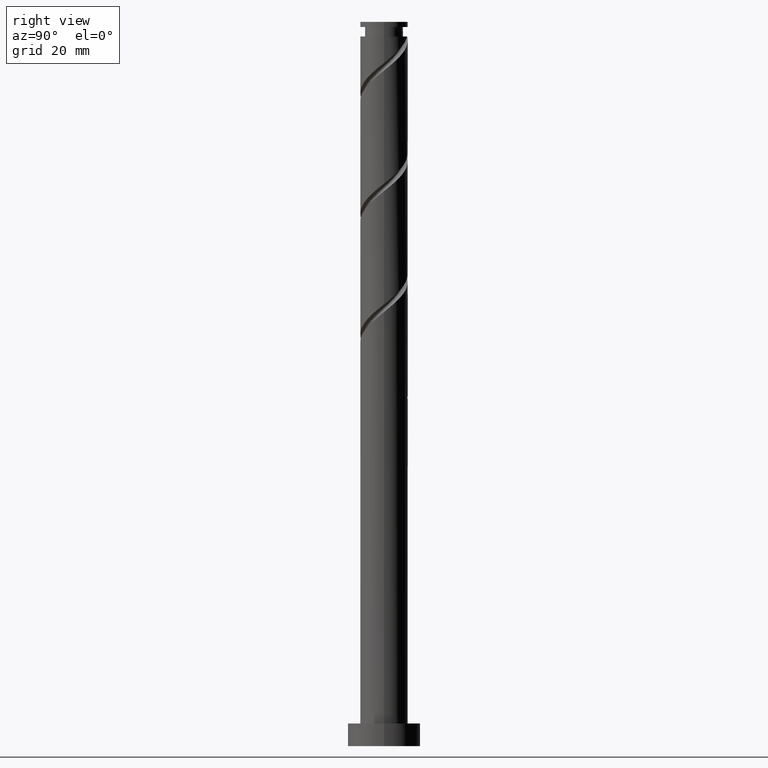
[diagram: clean part render]
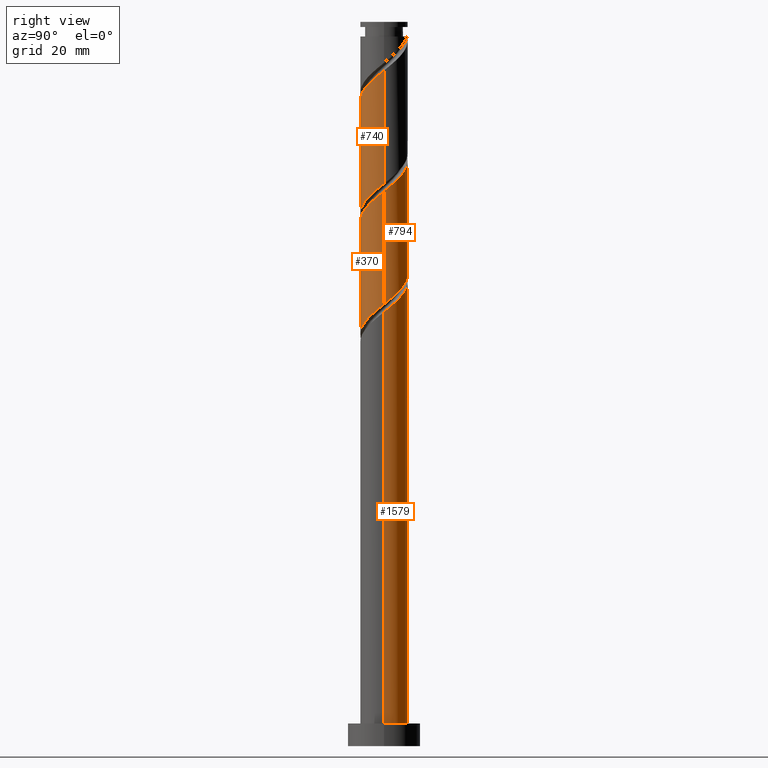
[diagram: same view with one multi-face feature highlighted, each face labeled with its STEP entity id]
A machine part, right view. The highlighted faces form ONE feature: a constant-radius fillet chain: 4 tangent blend faces with common blend radius 5.25 mm. The faces share edges in the B-rep.
Their STEP definitions:
[1] entity #740 (Cylinder):
#68 = CARTESIAN_POINT ( 'NONE',  ( -5.197907200538203654, -1.055480074241133437, 136.7693566931735063 ) ) ;
#78 = CARTESIAN_POINT ( 'NONE',  ( -1.784476131566090196, -4.994789523933699904, 116.1632960871128830 ) ) ;
#108 = CARTESIAN_POINT ( 'NONE',  ( 2.451931632424582563, -4.642254976831389435, 144.6481445719613532 ) ) ;
#112 = CARTESIAN_POINT ( 'NONE',  ( 5.114055971177482895, -1.186984213738335292, 148.2845082083249508 ) ) ;
#119 = EDGE_CURVE ( 'NONE', #233, #1574, #663, .T. ) ;
#126 = VECTOR ( 'NONE', #1514, 1000.000000000000000 ) ;
#131 = CARTESIAN_POINT ( 'NONE',  ( 5.250000000000007105, -0.6012768687718996752, 148.7672755942345759 ) ) ;
#140 = CARTESIAN_POINT ( 'NONE',  ( 5.250000000000007994, 3.664421072356622063E-15, 149.2532355472059180 ) ) ;
#153 = EDGE_CURVE ( 'NONE', #667, #1574, #1622, .T. ) ;
#174 = ORIENTED_EDGE ( 'NONE', *, *, #1280, .F. ) ;
#199 = CARTESIAN_POINT ( 'NONE',  ( -5.250000000000007994, 3.425111941100679676E-15, 135.9199022138725752 ) ) ;
#233 = VERTEX_POINT ( 'NONE', #862 ) ;
#237 = CARTESIAN_POINT ( 'NONE',  ( 4.201583941171067593, -3.237123698257508675, 146.4663263901431094 ) ) ;
#252 = CARTESIAN_POINT ( 'NONE',  ( 1.044736808961952201, -5.145000000000006679, 143.4360233598401635 ) ) ;
#272 = CARTESIAN_POINT ( 'NONE',  ( 4.572488673549144345, -2.579699077463275980, 147.0723869962037327 ) ) ;
#294 = CARTESIAN_POINT ( 'NONE',  ( -0.3049974863578157058, -5.295210476066303684, 117.3754172992340727 ) ) ;
#322 = ORIENTED_EDGE ( 'NONE', *, *, #119, .F. ) ;
#391 = CARTESIAN_POINT ( 'NONE',  ( 5.250000000000000000, -6.446389723206998310E-15, 124.2854778391410093 ) ) ;
#394 = CARTESIAN_POINT ( 'NONE',  ( -3.802122185635577356, -3.698127139245582118, 139.1935991174158573 ) ) ;
#424 = CARTESIAN_POINT ( 'NONE',  ( 0.000000000000000000, 0.000000000000000000, 160.0000000000000000 ) ) ;
#484 = CARTESIAN_POINT ( 'NONE',  ( -5.114055971177476678, -1.186984213738331961, 111.9208718446886479 ) ) ;
#497 = CARTESIAN_POINT ( 'NONE',  ( 5.250000000000000000, 6.429395695523604153E-16, 160.0000000000000000 ) ) ;
#506 = CARTESIAN_POINT ( 'NONE',  ( 1.784476131566091084, -4.994789523933706121, 144.0420839659007584 ) ) ;
#511 = CARTESIAN_POINT ( 'NONE',  ( 4.943949768471830986, -1.766312737548856537, 122.8299627537795544 ) ) ;
#519 = CARTESIAN_POINT ( 'NONE',  ( 3.802122185635572471, -3.698127139245577233, 121.0117809355977130 ) ) ;
#560 = CARTESIAN_POINT ( 'NONE',  ( 1.902708474391032745, -4.893076788839569424, 119.1935991174159000 ) ) ;
#561 = AXIS2_PLACEMENT_3D ( 'NONE', #424, #1165, #1195 ) ;
#575 = CARTESIAN_POINT ( 'NONE',  ( -1.044736808961952645, -5.144999999999999574, 116.7693566931734637 ) ) ;
#582 = CARTESIAN_POINT ( 'NONE',  ( -4.943949768471838091, -1.766312737548857426, 137.3754172992340727 ) ) ;
#599 = CARTESIAN_POINT ( 'NONE',  ( -5.250000000000000000, 5.429325915369235968E-15, 110.9521445058076665 ) ) ;
#608 = CARTESIAN_POINT ( 'NONE',  ( -5.250000000000001776, -0.6012768687718920146, 111.4381044587789944 ) ) ;
#633 = CARTESIAN_POINT ( 'NONE',  ( -4.689992336405471640, -2.477145400856581858, 137.9814779052946676 ) ) ;
#663 =( BOUNDED_CURVE ( )  B_SPLINE_CURVE ( 2, ( #391, #1634, #1371, #1643, #511, #1145, #873, #519, #769, #1166, #560, #1420, #925, #294, #575, #78, #725, #1488, #964, #1233, #1587, #1097, #484, #608, #599 ),
 .UNSPECIFIED., .F., .T. ) 
 B_SPLINE_CURVE_WITH_KNOTS ( ( 3, 2, 2, 2, 2, 2, 2, 2, 2, 2, 2, 2, 3 ),
 ( 0.5545252162417513286, 0.5568181818181817677, 0.5681818181818182323, 0.5795454545454545858, 0.5909090909090909394, 0.6022727272727272929, 0.6136363636363636465, 0.6250000000000000000, 0.6363636363636363535, 0.6477272727272727071, 0.6590909090909090606, 0.6704545454545454142, 0.6795252162417513286 ),
 .UNSPECIFIED. ) 
 CURVE ( )  GEOMETRIC_REPRESENTATION_ITEM ( )  RATIONAL_B_SPLINE_CURVE ( ( 0.9061101570135543515, 0.9072237824201364598, 0.9090909090909138346, 0.8998376744372161840, 0.9090909090909138346, 0.8998376744372161840, 0.9090909090909138346, 0.8998376744372161840, 0.9090909090909138346, 0.8998376744372161840, 0.9090909090909138346, 0.8998376744372161840, 0.9090909090909138346, 0.8998376744372161840, 0.9090909090909138346, 0.8998376744372161840, 0.9090909090909138346, 0.8998376744372161840, 0.9090909090909138346, 0.8998376744372161840, 0.9090909090909138346, 0.8998376744372161840, 0.9090909090909138346, 0.9017048011079935588, 0.9061101570135543515 ) ) 
 REPRESENTATION_ITEM ( '' )  );
#667 = VERTEX_POINT ( 'NONE', #801 ) ;
#690 = VECTOR ( 'NONE', #818, 1000.000000000000000 ) ;
#703 = CARTESIAN_POINT ( 'NONE',  ( -5.250000000000007994, -0.1510715142500640706, 136.0420002185908004 ) ) ;
#725 = CARTESIAN_POINT ( 'NONE',  ( -2.451931632424580343, -4.642254976831381441, 115.5572354810522455 ) ) ;
#740 = ADVANCED_FACE ( 'NONE', ( #1445 ), #790, .T. ) ;
#763 = CARTESIAN_POINT ( 'NONE',  ( -0.4470963774737324314, -5.230927721661803531, 142.2239021477189169 ) ) ;
#769 = CARTESIAN_POINT ( 'NONE',  ( 3.204174446556178779, -4.158817874833713901, 120.4057203295371181 ) ) ;
#790 = CYLINDRICAL_SURFACE ( 'NONE', #561, 5.250000000000000000 ) ;
#801 = CARTESIAN_POINT ( 'NONE',  ( -5.250000000000007994, 3.425111941100679676E-15, 135.9199022138725752 ) ) ;
#818 = DIRECTION ( 'NONE',  ( -0.000000000000000000, -0.000000000000000000, -1.000000000000000000 ) ) ;
#862 = CARTESIAN_POINT ( 'NONE',  ( 5.250000000000000000, -6.446389723206998310E-15, 124.2854778391410093 ) ) ;
#873 = CARTESIAN_POINT ( 'NONE',  ( 4.246057261020518503, -3.087636270051078213, 121.6178415416583221 ) ) ;
#878 = CARTESIAN_POINT ( 'NONE',  ( -1.902708474391036964, -4.893076788839576530, 141.0117809355976988 ) ) ;
#900 = CARTESIAN_POINT ( 'NONE',  ( 0.3049974863578137629, -5.295210476066309013, 142.8299627537794549 ) ) ;
#925 = CARTESIAN_POINT ( 'NONE',  ( 0.4470963774737297669, -5.230927721661797314, 117.9814779052946960 ) ) ;
#964 = CARTESIAN_POINT ( 'NONE',  ( -3.660485537227067265, -3.763422063993283384, 114.3451142689310416 ) ) ;
#1007 = CARTESIAN_POINT ( 'NONE',  ( 3.119387133283074487, -4.289720429729070972, 145.2542051780219481 ) ) ;
#1015 = CARTESIAN_POINT ( 'NONE',  ( 3.660485537227071706, -3.763422063993290934, 145.8602657840825430 ) ) ;
#1053 = EDGE_LOOP ( 'NONE', ( #174, #1227, #1523, #322 ) ) ;
#1097 = CARTESIAN_POINT ( 'NONE',  ( -4.943393405927213990, -1.922274456669037068, 112.5269324507492286 ) ) ;
#1136 = CARTESIAN_POINT ( 'NONE',  ( -2.606226707476793969, -4.619508610421854122, 140.4057203295371039 ) ) ;
#1145 = CARTESIAN_POINT ( 'NONE',  ( 4.689992336405464535, -2.477145400856580970, 122.2239021477189027 ) ) ;
#1148 = CARTESIAN_POINT ( 'NONE',  ( -3.204174446556184996, -4.158817874833717454, 139.7996597234764806 ) ) ;
#1159 = EDGE_CURVE ( 'NONE', #667, #1202, #1242, .T. ) ;
#1165 = DIRECTION ( 'NONE',  ( -0.000000000000000000, -0.000000000000000000, -1.000000000000000000 ) ) ;
#1166 = CARTESIAN_POINT ( 'NONE',  ( 2.606226707476788640, -4.619508610421848793, 119.7996597234765233 ) ) ;
#1195 = DIRECTION ( 'NONE',  ( -1.000000000000000000, 0.000000000000000000, 0.000000000000000000 ) ) ;
#1202 = VERTEX_POINT ( 'NONE', #140 ) ;
#1204 = CARTESIAN_POINT ( 'NONE',  ( -5.241312868482974174, -0.3018930517167516814, 136.1632960871128830 ) ) ;
#1221 = CARTESIAN_POINT ( 'NONE',  ( -5.250000000000000000, 5.429325915369235179E-15, 110.9521445058076807 ) ) ;
#1227 = ORIENTED_EDGE ( 'NONE', *, *, #1159, .F. ) ;
#1233 = CARTESIAN_POINT ( 'NONE',  ( -4.201583941171064041, -3.237123698257502902, 113.7390536628704467 ) ) ;
#1242 =( BOUNDED_CURVE ( )  B_SPLINE_CURVE ( 2, ( #199, #703, #1204, #68, #582, #633, #1533, #394, #1148, #1136, #878, #1650, #763, #900, #252, #506, #108, #1007, #1015, #237, #272, #1406, #112, #131, #1376 ),
 .UNSPECIFIED., .F., .T. ) 
 B_SPLINE_CURVE_WITH_KNOTS ( ( 3, 2, 2, 2, 2, 2, 2, 2, 2, 2, 2, 2, 3 ),
 ( 0.5545252162417513286, 0.5568181818181818787, 0.5681818181818181213, 0.5795454545454545858, 0.5909090909090908283, 0.6022727272727272929, 0.6136363636363636465, 0.6250000000000000000, 0.6363636363636363535, 0.6477272727272727071, 0.6590909090909091717, 0.6704545454545454142, 0.6795252162417513286 ),
 .UNSPECIFIED. ) 
 CURVE ( )  GEOMETRIC_REPRESENTATION_ITEM ( )  RATIONAL_B_SPLINE_CURVE ( ( 0.9061101570135601246, 0.9072237824201423440, 0.9090909090909198298, 0.8998376744372221792, 0.9090909090909198298, 0.8998376744372221792, 0.9090909090909198298, 0.8998376744372221792, 0.9090909090909198298, 0.8998376744372221792, 0.9090909090909198298, 0.8998376744372221792, 0.9090909090909198298, 0.8998376744372221792, 0.9090909090909198298, 0.8998376744372221792, 0.9090909090909198298, 0.8998376744372221792, 0.9090909090909198298, 0.8998376744372221792, 0.9090909090909198298, 0.8998376744372221792, 0.9090909090909198298, 0.9017048011079996650, 0.9061101570135601246 ) ) 
 REPRESENTATION_ITEM ( '' )  );
#1278 = LINE ( 'NONE', #497, #126 ) ;
#1280 = EDGE_CURVE ( 'NONE', #1202, #233, #1278, .T. ) ;
#1371 = CARTESIAN_POINT ( 'NONE',  ( 5.241312868482967957, -0.3018930517167535688, 124.0420839659007299 ) ) ;
#1376 = CARTESIAN_POINT ( 'NONE',  ( 5.250000000000007994, 3.664421072356622063E-15, 149.2532355472059180 ) ) ;
#1406 = CARTESIAN_POINT ( 'NONE',  ( 4.943393405927220208, -1.922274456669039289, 147.6784476022643560 ) ) ;
#1420 = CARTESIAN_POINT ( 'NONE',  ( 1.199190241305277516, -5.166644967257291832, 118.5875385113552767 ) ) ;
#1445 = FACE_OUTER_BOUND ( 'NONE', #1053, .T. ) ;
#1454 = CARTESIAN_POINT ( 'NONE',  ( -5.250000000000000000, 0.000000000000000000, 160.0000000000000000 ) ) ;
#1488 = CARTESIAN_POINT ( 'NONE',  ( -3.119387133283070934, -4.289720429729066531, 114.9511748749916649 ) ) ;
#1514 = DIRECTION ( 'NONE',  ( -0.000000000000000000, -0.000000000000000000, -1.000000000000000000 ) ) ;
#1523 = ORIENTED_EDGE ( 'NONE', *, *, #153, .T. ) ;
#1533 = CARTESIAN_POINT ( 'NONE',  ( -4.246057261020524720, -3.087636270051081766, 138.5875385113552340 ) ) ;
#1574 = VERTEX_POINT ( 'NONE', #1221 ) ;
#1587 = CARTESIAN_POINT ( 'NONE',  ( -4.572488673549138127, -2.579699077463270207, 113.1329930568098234 ) ) ;
#1622 = LINE ( 'NONE', #1454, #690 ) ;
#1634 = CARTESIAN_POINT ( 'NONE',  ( 5.250000000000000000, -0.1510715142500720920, 124.1633798344227841 ) ) ;
#1643 = CARTESIAN_POINT ( 'NONE',  ( 5.197907200538196548, -1.055480074241133881, 123.4360233598401493 ) ) ;
#1650 = CARTESIAN_POINT ( 'NONE',  ( -1.199190241305278848, -5.166644967257297161, 141.6178415416582652 ) ) ;
[2] entity #794 (Cylinder):
#43 = CARTESIAN_POINT ( 'NONE',  ( 0.000000000000000000, 0.000000000000000000, 160.0000000000000000 ) ) ;
#77 = CARTESIAN_POINT ( 'NONE',  ( 4.246057261020525608, 3.087636270051080878, 125.2542051780219339 ) ) ;
#86 = CARTESIAN_POINT ( 'NONE',  ( -3.660485537227071706, 3.763422063993290934, 132.5269324507492286 ) ) ;
#94 = CARTESIAN_POINT ( 'NONE',  ( -4.246057261020516727, 3.087636270051077325, 108.2845082083249650 ) ) ;
#97 =( BOUNDED_CURVE ( )  B_SPLINE_CURVE ( 2, ( #1058, #589, #462, #1471, #343, #1478, #77, #715, #1095, #1223, #1333, #204, #607, #853, #1110, #336, #709, #1596, #86, #1232, #1621, #353, #483, #1603, #1212 ),
 .UNSPECIFIED., .F., .T. ) 
 B_SPLINE_CURVE_WITH_KNOTS ( ( 3, 2, 2, 2, 2, 2, 2, 2, 2, 2, 2, 2, 3 ),
 ( 0.4295252162417513286, 0.4318181818181817677, 0.4431818181818182323, 0.4545454545454545858, 0.4659090909090909394, 0.4772727272727272929, 0.4886363636363636465, 0.5000000000000000000, 0.5113636363636363535, 0.5227272727272727071, 0.5340909090909091717, 0.5454545454545454142, 0.5545252162417513286 ),
 .UNSPECIFIED. ) 
 CURVE ( )  GEOMETRIC_REPRESENTATION_ITEM ( )  RATIONAL_B_SPLINE_CURVE ( ( 0.9061101570135603467, 0.9072237824201424550, 0.9090909090909198298, 0.8998376744372221792, 0.9090909090909198298, 0.8998376744372221792, 0.9090909090909198298, 0.8998376744372221792, 0.9090909090909198298, 0.8998376744372221792, 0.9090909090909198298, 0.8998376744372221792, 0.9090909090909198298, 0.8998376744372221792, 0.9090909090909198298, 0.8998376744372221792, 0.9090909090909198298, 0.8998376744372221792, 0.9090909090909198298, 0.8998376744372221792, 0.9090909090909198298, 0.8998376744372221792, 0.9090909090909198298, 0.9017048011079996650, 0.9061101570135601246 ) ) 
 REPRESENTATION_ITEM ( '' )  );
#102 = VECTOR ( 'NONE', #1152, 1000.000000000000000 ) ;
#115 = CARTESIAN_POINT ( 'NONE',  ( 2.451931632424580787, 4.642254976831381441, 102.2239021477189596 ) ) ;
#153 = EDGE_CURVE ( 'NONE', #667, #1574, #1622, .T. ) ;
#204 = CARTESIAN_POINT ( 'NONE',  ( 1.199190241305279514, 5.166644967257297161, 128.2845082083249793 ) ) ;
#226 = EDGE_CURVE ( 'NONE', #1574, #572, #908, .T. ) ;
#265 = CARTESIAN_POINT ( 'NONE',  ( -3.204174446556179667, 4.158817874833713013, 107.0723869962037611 ) ) ;
#301 = EDGE_CURVE ( 'NONE', #951, #572, #810, .T. ) ;
#336 = CARTESIAN_POINT ( 'NONE',  ( -1.784476131566091750, 4.994789523933705233, 130.7087506325673871 ) ) ;
#343 = CARTESIAN_POINT ( 'NONE',  ( 4.943949768471838091, 1.766312737548856537, 124.0420839659007299 ) ) ;
#353 = CARTESIAN_POINT ( 'NONE',  ( -4.943393405927220208, 1.922274456669040621, 134.3451142689310416 ) ) ;
#355 = CARTESIAN_POINT ( 'NONE',  ( 5.250000000000000000, -6.446389723206998310E-15, 97.61881117247435213 ) ) ;
#389 = CARTESIAN_POINT ( 'NONE',  ( -1.902708474391032745, 4.893076788839569424, 105.8602657840825714 ) ) ;
#462 = CARTESIAN_POINT ( 'NONE',  ( 5.241312868482974174, 0.3018930517167511818, 122.8299627537795260 ) ) ;
#483 = CARTESIAN_POINT ( 'NONE',  ( -5.114055971177482895, 1.186984213738335514, 134.9511748749916364 ) ) ;
#485 = CARTESIAN_POINT ( 'NONE',  ( 4.572488673549138127, 2.579699077463271539, 99.79965972347645220 ) ) ;
#491 = CARTESIAN_POINT ( 'NONE',  ( 1.784476131566091306, 4.994789523933699904, 102.8299627537795260 ) ) ;
#518 = CARTESIAN_POINT ( 'NONE',  ( -5.241312868482967957, 0.3018930517167528471, 110.7087506325674013 ) ) ;
#572 = VERTEX_POINT ( 'NONE', #1284 ) ;
#589 = CARTESIAN_POINT ( 'NONE',  ( 5.250000000000007105, 0.1510715142500695385, 122.7086668852574434 ) ) ;
#607 = CARTESIAN_POINT ( 'NONE',  ( 0.4470963774737330421, 5.230927721661803531, 128.8905688143856025 ) ) ;
#609 = CARTESIAN_POINT ( 'NONE',  ( 3.660485537227065045, 3.763422063993285160, 101.0117809355977130 ) ) ;
#610 = ORIENTED_EDGE ( 'NONE', *, *, #301, .T. ) ;
#647 = CARTESIAN_POINT ( 'NONE',  ( 5.250000000000000000, 6.429395695523604153E-16, 160.0000000000000000 ) ) ;
#659 = CYLINDRICAL_SURFACE ( 'NONE', #820, 5.250000000000000000 ) ;
#665 = EDGE_LOOP ( 'NONE', ( #954, #610, #799, #821 ) ) ;
#667 = VERTEX_POINT ( 'NONE', #801 ) ;
#687 = DIRECTION ( 'NONE',  ( -0.000000000000000000, -0.000000000000000000, -1.000000000000000000 ) ) ;
#690 = VECTOR ( 'NONE', #818, 1000.000000000000000 ) ;
#696 = CARTESIAN_POINT ( 'NONE',  ( 5.250000000000007994, 3.664421072356622063E-15, 122.5865688805392324 ) ) ;
#709 = CARTESIAN_POINT ( 'NONE',  ( -2.451931632424583007, 4.642254976831389435, 131.3148112386279820 ) ) ;
#715 = CARTESIAN_POINT ( 'NONE',  ( 3.802122185635579577, 3.698127139245580342, 125.8602657840825145 ) ) ;
#794 = ADVANCED_FACE ( 'NONE', ( #817 ), #659, .T. ) ;
#799 = ORIENTED_EDGE ( 'NONE', *, *, #226, .F. ) ;
#801 = CARTESIAN_POINT ( 'NONE',  ( -5.250000000000007994, 3.425111941100679676E-15, 135.9199022138725752 ) ) ;
#810 = LINE ( 'NONE', #647, #102 ) ;
#817 = FACE_OUTER_BOUND ( 'NONE', #665, .T. ) ;
#818 = DIRECTION ( 'NONE',  ( -0.000000000000000000, -0.000000000000000000, -1.000000000000000000 ) ) ;
#820 = AXIS2_PLACEMENT_3D ( 'NONE', #43, #687, #920 ) ;
#821 = ORIENTED_EDGE ( 'NONE', *, *, #153, .F. ) ;
#853 = CARTESIAN_POINT ( 'NONE',  ( -0.3049974863578130968, 5.295210476066309013, 129.4966294204461690 ) ) ;
#880 = CARTESIAN_POINT ( 'NONE',  ( -0.4470963774737310437, 5.230927721661797314, 104.6481445719613390 ) ) ;
#894 = CARTESIAN_POINT ( 'NONE',  ( -3.802122185635571583, 3.698127139245577677, 107.6784476022643702 ) ) ;
#908 =( BOUNDED_CURVE ( )  B_SPLINE_CURVE ( 2, ( #1256, #1120, #518, #1663, #1023, #1632, #94, #894, #265, #1527, #389, #1138, #880, #1499, #1234, #491, #115, #1653, #609, #1112, #485, #1000, #1378, #990, #355 ),
 .UNSPECIFIED., .F., .T. ) 
 B_SPLINE_CURVE_WITH_KNOTS ( ( 3, 2, 2, 2, 2, 2, 2, 2, 2, 2, 2, 2, 3 ),
 ( 0.6795252162417513286, 0.6818181818181817677, 0.6931818181818182323, 0.7045454545454545858, 0.7159090909090909394, 0.7272727272727272929, 0.7386363636363636465, 0.7500000000000000000, 0.7613636363636363535, 0.7727272727272727071, 0.7840909090909090606, 0.7954545454545454142, 0.8045252162417513286 ),
 .UNSPECIFIED. ) 
 CURVE ( )  GEOMETRIC_REPRESENTATION_ITEM ( )  RATIONAL_B_SPLINE_CURVE ( ( 0.9061101570135543515, 0.9072237824201364598, 0.9090909090909138346, 0.8998376744372161840, 0.9090909090909138346, 0.8998376744372161840, 0.9090909090909138346, 0.8998376744372161840, 0.9090909090909138346, 0.8998376744372161840, 0.9090909090909138346, 0.8998376744372161840, 0.9090909090909138346, 0.8998376744372161840, 0.9090909090909138346, 0.8998376744372161840, 0.9090909090909138346, 0.8998376744372161840, 0.9090909090909138346, 0.8998376744372161840, 0.9090909090909138346, 0.8998376744372161840, 0.9090909090909138346, 0.9017048011079935588, 0.9061101570135543515 ) ) 
 REPRESENTATION_ITEM ( '' )  );
#920 = DIRECTION ( 'NONE',  ( -1.000000000000000000, 0.000000000000000000, 0.000000000000000000 ) ) ;
#951 = VERTEX_POINT ( 'NONE', #696 ) ;
#954 = ORIENTED_EDGE ( 'NONE', *, *, #1037, .F. ) ;
#990 = CARTESIAN_POINT ( 'NONE',  ( 5.250000000000001776, 0.6012768687718903493, 98.10477112544568001 ) ) ;
#1000 = CARTESIAN_POINT ( 'NONE',  ( 4.943393405927214879, 1.922274456669034404, 99.19359911741589997 ) ) ;
#1023 = CARTESIAN_POINT ( 'NONE',  ( -4.943949768471830986, 1.766312737548856093, 109.4966294204461974 ) ) ;
#1037 = EDGE_CURVE ( 'NONE', #951, #667, #97, .T. ) ;
#1058 = CARTESIAN_POINT ( 'NONE',  ( 5.250000000000007994, 3.664421072356622063E-15, 122.5865688805392182 ) ) ;
#1095 = CARTESIAN_POINT ( 'NONE',  ( 3.204174446556184108, 4.158817874833719230, 126.4663263901431804 ) ) ;
#1110 = CARTESIAN_POINT ( 'NONE',  ( -1.044736808961951535, 5.145000000000006679, 130.1026900265067923 ) ) ;
#1112 = CARTESIAN_POINT ( 'NONE',  ( 4.201583941171061376, 3.237123698257504234, 100.4057203295370897 ) ) ;
#1120 = CARTESIAN_POINT ( 'NONE',  ( -5.250000000000000000, 0.1510715142500712316, 110.8300465010894413 ) ) ;
#1138 = CARTESIAN_POINT ( 'NONE',  ( -1.199190241305276627, 5.166644967257290944, 105.2542051780219339 ) ) ;
#1152 = DIRECTION ( 'NONE',  ( -0.000000000000000000, -0.000000000000000000, -1.000000000000000000 ) ) ;
#1212 = CARTESIAN_POINT ( 'NONE',  ( -5.250000000000007994, 3.425111941100679676E-15, 135.9199022138725752 ) ) ;
#1221 = CARTESIAN_POINT ( 'NONE',  ( -5.250000000000000000, 5.429325915369235179E-15, 110.9521445058076807 ) ) ;
#1223 = CARTESIAN_POINT ( 'NONE',  ( 2.606226707476792193, 4.619508610421854122, 127.0723869962037185 ) ) ;
#1232 = CARTESIAN_POINT ( 'NONE',  ( -4.201583941171067593, 3.237123698257508231, 133.1329930568097666 ) ) ;
#1234 = CARTESIAN_POINT ( 'NONE',  ( 1.044736808961953534, 5.144999999999999574, 103.4360233598401209 ) ) ;
#1256 = CARTESIAN_POINT ( 'NONE',  ( -5.250000000000000000, 5.429325915369235968E-15, 110.9521445058076665 ) ) ;
#1284 = CARTESIAN_POINT ( 'NONE',  ( 5.250000000000000000, -6.446389723206998310E-15, 97.61881117247435213 ) ) ;
#1333 = CARTESIAN_POINT ( 'NONE',  ( 1.902708474391034965, 4.893076788839577418, 127.6784476022643844 ) ) ;
#1378 = CARTESIAN_POINT ( 'NONE',  ( 5.114055971177477566, 1.186984213738330851, 98.58753851135529089 ) ) ;
#1454 = CARTESIAN_POINT ( 'NONE',  ( -5.250000000000000000, 0.000000000000000000, 160.0000000000000000 ) ) ;
#1471 = CARTESIAN_POINT ( 'NONE',  ( 5.197907200538203654, 1.055480074241132771, 123.4360233598401209 ) ) ;
#1478 = CARTESIAN_POINT ( 'NONE',  ( 4.689992336405474305, 2.477145400856580526, 124.6481445719613106 ) ) ;
#1499 = CARTESIAN_POINT ( 'NONE',  ( 0.3049974863578144291, 5.295210476066303684, 104.0420839659007441 ) ) ;
#1527 = CARTESIAN_POINT ( 'NONE',  ( -2.606226707476789528, 4.619508610421848793, 106.4663263901431662 ) ) ;
#1574 = VERTEX_POINT ( 'NONE', #1221 ) ;
#1596 = CARTESIAN_POINT ( 'NONE',  ( -3.119387133283074043, 4.289720429729071860, 131.9208718446886053 ) ) ;
#1603 = CARTESIAN_POINT ( 'NONE',  ( -5.250000000000007105, 0.6012768687719000082, 135.4339422609012900 ) ) ;
#1621 = CARTESIAN_POINT ( 'NONE',  ( -4.572488673549145233, 2.579699077463275536, 133.7390536628703899 ) ) ;
#1622 = LINE ( 'NONE', #1454, #690 ) ;
#1632 = CARTESIAN_POINT ( 'NONE',  ( -4.689992336405464535, 2.477145400856580970, 108.8905688143855883 ) ) ;
#1653 = CARTESIAN_POINT ( 'NONE',  ( 3.119387133283070934, 4.289720429729066531, 101.6178415416583221 ) ) ;
#1663 = CARTESIAN_POINT ( 'NONE',  ( -5.197907200538196548, 1.055480074241133215, 110.1026900265068349 ) ) ;
[3] entity #370 (Cylinder):
#4 = CARTESIAN_POINT ( 'NONE',  ( -5.250000000000007994, -3.873816562205571602E-15, 109.2532355472059038 ) ) ;
#93 = CARTESIAN_POINT ( 'NONE',  ( -1.044736808961952645, -5.144999999999999574, 90.10269002650682069 ) ) ;
#100 = CARTESIAN_POINT ( 'NONE',  ( 4.943949768471830986, -1.766312737548856537, 96.16329608711286880 ) ) ;
#102 = VECTOR ( 'NONE', #1152, 1000.000000000000000 ) ;
#114 = CARTESIAN_POINT ( 'NONE',  ( 1.902708474391032745, -4.893076788839569424, 92.52693245074922856 ) ) ;
#220 = CARTESIAN_POINT ( 'NONE',  ( 5.197907200538196548, -1.055480074241133881, 96.76935669317349209 ) ) ;
#229 = CARTESIAN_POINT ( 'NONE',  ( 5.241312868482967957, -0.3018930517167535688, 97.37541729923405853 ) ) ;
#254 = CARTESIAN_POINT ( 'NONE',  ( -2.451931632424580343, -4.642254976831381441, 88.89056881438557411 ) ) ;
#261 = CARTESIAN_POINT ( 'NONE',  ( -3.204174446556184996, -4.158817874833717454, 113.1329930568098234 ) ) ;
#284 = CARTESIAN_POINT ( 'NONE',  ( -5.250000000000000000, 5.429325915369235968E-15, 84.28547783914100933 ) ) ;
#301 = EDGE_CURVE ( 'NONE', #951, #572, #810, .T. ) ;
#304 = CARTESIAN_POINT ( 'NONE',  ( 4.572488673549144345, -2.579699077463275980, 120.4057203295371039 ) ) ;
#368 = CARTESIAN_POINT ( 'NONE',  ( -5.250000000000007105, -0.1510715142500735630, 109.3753335519241290 ) ) ;
#370 = ADVANCED_FACE ( 'NONE', ( #1598 ), #948, .T. ) ;
#371 = CARTESIAN_POINT ( 'NONE',  ( 4.246057261020518503, -3.087636270051078213, 94.95117487499162223 ) ) ;
#378 = CARTESIAN_POINT ( 'NONE',  ( 1.784476131566091084, -4.994789523933706121, 117.3754172992340585 ) ) ;
#387 = LINE ( 'NONE', #1142, #1296 ) ;
#397 = CARTESIAN_POINT ( 'NONE',  ( -5.250000000000001776, -0.6012768687718920146, 84.77143779211232300 ) ) ;
#413 = CARTESIAN_POINT ( 'NONE',  ( 3.660485537227071706, -3.763422063993290934, 119.1935991174159000 ) ) ;
#504 = EDGE_CURVE ( 'NONE', #572, #893, #777, .T. ) ;
#516 = CARTESIAN_POINT ( 'NONE',  ( 3.802122185635572471, -3.698127139245577233, 94.34511426893105579 ) ) ;
#523 = CARTESIAN_POINT ( 'NONE',  ( -4.689992336405471640, -2.477145400856581858, 111.3148112386279962 ) ) ;
#547 = VERTEX_POINT ( 'NONE', #1606 ) ;
#569 = ORIENTED_EDGE ( 'NONE', *, *, #1178, .T. ) ;
#572 = VERTEX_POINT ( 'NONE', #1284 ) ;
#627 = CARTESIAN_POINT ( 'NONE',  ( 1.044736808961952201, -5.145000000000006679, 116.7693566931734352 ) ) ;
#629 = CARTESIAN_POINT ( 'NONE',  ( 0.4470963774737297669, -5.230927721661797314, 91.31481123862801041 ) ) ;
#645 = CARTESIAN_POINT ( 'NONE',  ( -4.943393405927213990, -1.922274456669037068, 85.86026578408255716 ) ) ;
#647 = CARTESIAN_POINT ( 'NONE',  ( 5.250000000000000000, 6.429395695523604153E-16, 160.0000000000000000 ) ) ;
#660 = AXIS2_PLACEMENT_3D ( 'NONE', #1213, #833, #1472 ) ;
#696 = CARTESIAN_POINT ( 'NONE',  ( 5.250000000000007994, 3.664421072356622063E-15, 122.5865688805392324 ) ) ;
#724 = CARTESIAN_POINT ( 'NONE',  ( 3.204174446556178779, -4.158817874833713901, 93.73905366287041829 ) ) ;
#738 = DIRECTION ( 'NONE',  ( -0.000000000000000000, -0.000000000000000000, -1.000000000000000000 ) ) ;
#745 = CARTESIAN_POINT ( 'NONE',  ( -1.199190241305278848, -5.166644967257297161, 114.9511748749916649 ) ) ;
#756 = CARTESIAN_POINT ( 'NONE',  ( -3.660485537227067265, -3.763422063993283384, 87.67844760226437018 ) ) ;
#766 = CARTESIAN_POINT ( 'NONE',  ( -4.572488673549138127, -2.579699077463270207, 86.46632639014316624 ) ) ;
#777 =( BOUNDED_CURVE ( )  B_SPLINE_CURVE ( 2, ( #1255, #1008, #229, #220, #100, #1377, #371, #516, #724, #1387, #114, #998, #629, #1522, #93, #1652, #254, #1239, #756, #902, #766, #645, #1289, #397, #284 ),
 .UNSPECIFIED., .F., .T. ) 
 B_SPLINE_CURVE_WITH_KNOTS ( ( 3, 2, 2, 2, 2, 2, 2, 2, 2, 2, 2, 2, 3 ),
 ( 0.8045252162417513286, 0.8068181818181817677, 0.8181818181818182323, 0.8295454545454545858, 0.8409090909090909394, 0.8522727272727272929, 0.8636363636363636465, 0.8750000000000000000, 0.8863636363636363535, 0.8977272727272727071, 0.9090909090909090606, 0.9204545454545454142, 0.9295252162417513286 ),
 .UNSPECIFIED. ) 
 CURVE ( )  GEOMETRIC_REPRESENTATION_ITEM ( )  RATIONAL_B_SPLINE_CURVE ( ( 0.9061101570135543515, 0.9072237824201364598, 0.9090909090909138346, 0.8998376744372161840, 0.9090909090909138346, 0.8998376744372161840, 0.9090909090909138346, 0.8998376744372161840, 0.9090909090909138346, 0.8998376744372161840, 0.9090909090909138346, 0.8998376744372161840, 0.9090909090909138346, 0.8998376744372161840, 0.9090909090909138346, 0.8998376744372161840, 0.9090909090909138346, 0.8998376744372161840, 0.9090909090909138346, 0.8998376744372161840, 0.9090909090909138346, 0.8998376744372161840, 0.9090909090909138346, 0.9017048011079935588, 0.9061101570135543515 ) ) 
 REPRESENTATION_ITEM ( '' )  );
#783 = CARTESIAN_POINT ( 'NONE',  ( -5.250000000000000000, 5.429325915369235179E-15, 84.28547783914100933 ) ) ;
#810 = LINE ( 'NONE', #647, #102 ) ;
#833 = DIRECTION ( 'NONE',  ( -0.000000000000000000, -0.000000000000000000, -1.000000000000000000 ) ) ;
#838 = ORIENTED_EDGE ( 'NONE', *, *, #301, .F. ) ;
#871 = CARTESIAN_POINT ( 'NONE',  ( -4.246057261020524720, -3.087636270051081766, 111.9208718446886337 ) ) ;
#885 = CARTESIAN_POINT ( 'NONE',  ( 2.451931632424582563, -4.642254976831389435, 117.9814779052946534 ) ) ;
#891 = CARTESIAN_POINT ( 'NONE',  ( -3.802122185635577356, -3.698127139245582118, 112.5269324507491859 ) ) ;
#893 = VERTEX_POINT ( 'NONE', #783 ) ;
#902 = CARTESIAN_POINT ( 'NONE',  ( -4.201583941171064041, -3.237123698257502902, 87.07238699620376110 ) ) ;
#948 = CYLINDRICAL_SURFACE ( 'NONE', #660, 5.250000000000000000 ) ;
#951 = VERTEX_POINT ( 'NONE', #696 ) ;
#997 = CARTESIAN_POINT ( 'NONE',  ( -5.241312868482974174, -0.3018930517167516814, 109.4966294204461832 ) ) ;
#998 = CARTESIAN_POINT ( 'NONE',  ( 1.199190241305277516, -5.166644967257291832, 91.92087184468861949 ) ) ;
#1008 = CARTESIAN_POINT ( 'NONE',  ( 5.250000000000000000, -0.1510715142500720920, 97.49671316775611274 ) ) ;
#1026 = CARTESIAN_POINT ( 'NONE',  ( 0.3049974863578137629, -5.295210476066309013, 116.1632960871128404 ) ) ;
#1031 = CARTESIAN_POINT ( 'NONE',  ( 4.943393405927220208, -1.922274456669039289, 121.0117809355976704 ) ) ;
#1047 = CARTESIAN_POINT ( 'NONE',  ( 5.250000000000009770, -0.6012768687718939020, 122.1006089275679187 ) ) ;
#1126 = CARTESIAN_POINT ( 'NONE',  ( -2.606226707476793969, -4.619508610421854122, 113.7390536628704041 ) ) ;
#1142 = CARTESIAN_POINT ( 'NONE',  ( -5.250000000000000000, 0.000000000000000000, 160.0000000000000000 ) ) ;
#1152 = DIRECTION ( 'NONE',  ( -0.000000000000000000, -0.000000000000000000, -1.000000000000000000 ) ) ;
#1167 = EDGE_LOOP ( 'NONE', ( #838, #1304, #569, #1483 ) ) ;
#1169 = CARTESIAN_POINT ( 'NONE',  ( 4.201583941171067593, -3.237123698257508675, 119.7996597234764948 ) ) ;
#1178 = EDGE_CURVE ( 'NONE', #547, #893, #387, .T. ) ;
#1213 = CARTESIAN_POINT ( 'NONE',  ( 0.000000000000000000, 0.000000000000000000, 160.0000000000000000 ) ) ;
#1239 = CARTESIAN_POINT ( 'NONE',  ( -3.119387133283070934, -4.289720429729066531, 88.28450820832499346 ) ) ;
#1255 = CARTESIAN_POINT ( 'NONE',  ( 5.250000000000000000, -6.446389723206998310E-15, 97.61881117247435213 ) ) ;
#1270 = CARTESIAN_POINT ( 'NONE',  ( -0.4470963774737324314, -5.230927721661803531, 115.5572354810522597 ) ) ;
#1284 = CARTESIAN_POINT ( 'NONE',  ( 5.250000000000000000, -6.446389723206998310E-15, 97.61881117247435213 ) ) ;
#1289 = CARTESIAN_POINT ( 'NONE',  ( -5.114055971177476678, -1.186984213738331961, 85.25420517802196230 ) ) ;
#1296 = VECTOR ( 'NONE', #738, 1000.000000000000000 ) ;
#1298 = CARTESIAN_POINT ( 'NONE',  ( 5.114055971177482895, -1.186984213738335292, 121.6178415416583221 ) ) ;
#1304 = ORIENTED_EDGE ( 'NONE', *, *, #1329, .F. ) ;
#1329 = EDGE_CURVE ( 'NONE', #547, #951, #1343, .T. ) ;
#1343 =( BOUNDED_CURVE ( )  B_SPLINE_CURVE ( 2, ( #4, #368, #997, #1630, #1505, #523, #871, #891, #261, #1126, #1367, #745, #1270, #1026, #627, #378, #885, #1385, #413, #1169, #304, #1031, #1298, #1047, #1543 ),
 .UNSPECIFIED., .F., .T. ) 
 B_SPLINE_CURVE_WITH_KNOTS ( ( 3, 2, 2, 2, 2, 2, 2, 2, 2, 2, 2, 2, 3 ),
 ( 0.3045252162417513841, 0.3068181818181817677, 0.3181818181818182323, 0.3295454545454545858, 0.3409090909090909394, 0.3522727272727272929, 0.3636363636363636465, 0.3750000000000000000, 0.3863636363636363535, 0.3977272727272727071, 0.4090909090909090606, 0.4204545454545454142, 0.4295252162417513286 ),
 .UNSPECIFIED. ) 
 CURVE ( )  GEOMETRIC_REPRESENTATION_ITEM ( )  RATIONAL_B_SPLINE_CURVE ( ( 0.9061101570135603467, 0.9072237824201424550, 0.9090909090909198298, 0.8998376744372221792, 0.9090909090909198298, 0.8998376744372221792, 0.9090909090909198298, 0.8998376744372221792, 0.9090909090909198298, 0.8998376744372221792, 0.9090909090909198298, 0.8998376744372221792, 0.9090909090909198298, 0.8998376744372221792, 0.9090909090909198298, 0.8998376744372221792, 0.9090909090909198298, 0.8998376744372221792, 0.9090909090909198298, 0.8998376744372221792, 0.9090909090909198298, 0.8998376744372221792, 0.9090909090909198298, 0.9017048011079995540, 0.9061101570135603467 ) ) 
 REPRESENTATION_ITEM ( '' )  );
#1367 = CARTESIAN_POINT ( 'NONE',  ( -1.902708474391036964, -4.893076788839576530, 114.3451142689310416 ) ) ;
#1377 = CARTESIAN_POINT ( 'NONE',  ( 4.689992336405464535, -2.477145400856580970, 95.55723548105227394 ) ) ;
#1385 = CARTESIAN_POINT ( 'NONE',  ( 3.119387133283074487, -4.289720429729070972, 118.5875385113553051 ) ) ;
#1387 = CARTESIAN_POINT ( 'NONE',  ( 2.606226707476788640, -4.619508610421848793, 93.13299305680985185 ) ) ;
#1472 = DIRECTION ( 'NONE',  ( -1.000000000000000000, 0.000000000000000000, 0.000000000000000000 ) ) ;
#1483 = ORIENTED_EDGE ( 'NONE', *, *, #504, .F. ) ;
#1505 = CARTESIAN_POINT ( 'NONE',  ( -4.943949768471838091, -1.766312737548857426, 110.7087506325674013 ) ) ;
#1522 = CARTESIAN_POINT ( 'NONE',  ( -0.3049974863578157058, -5.295210476066303684, 90.70875063256741555 ) ) ;
#1543 = CARTESIAN_POINT ( 'NONE',  ( 5.250000000000007994, 3.664421072356622063E-15, 122.5865688805392182 ) ) ;
#1598 = FACE_OUTER_BOUND ( 'NONE', #1167, .T. ) ;
#1606 = CARTESIAN_POINT ( 'NONE',  ( -5.250000000000007994, -3.873816562205571602E-15, 109.2532355472059038 ) ) ;
#1630 = CARTESIAN_POINT ( 'NONE',  ( -5.197907200538203654, -1.055480074241133437, 110.1026900265067923 ) ) ;
#1652 = CARTESIAN_POINT ( 'NONE',  ( -1.784476131566090196, -4.994789523933699904, 89.49662942044621161 ) ) ;
[4] entity #1579 (Cylinder):
#8 = VERTEX_POINT ( 'NONE', #584 ) ;
#13 = CARTESIAN_POINT ( 'NONE',  ( -4.943393405927220208, 1.922274456669040621, 81.01178093559769877 ) ) ;
#33 = LINE ( 'NONE', #1553, #456 ) ;
#41 = CARTESIAN_POINT ( 'NONE',  ( -1.784476131566091750, 4.994789523933705233, 77.37541729923408695 ) ) ;
#66 = CARTESIAN_POINT ( 'NONE',  ( -5.114055971177482895, 1.186984213738335514, 108.2845082083249793 ) ) ;
#76 = CARTESIAN_POINT ( 'NONE',  ( 3.802122185635579577, 3.698127139245580342, 99.19359911741585734 ) ) ;
#85 = CARTESIAN_POINT ( 'NONE',  ( 4.689992336405474305, 2.477145400856580526, 97.98147790529465340 ) ) ;
#91 = CARTESIAN_POINT ( 'NONE',  ( 0.4470963774737330421, 5.230927721661803531, 102.2239021477189169 ) ) ;
#136 = VERTEX_POINT ( 'NONE', #1111 ) ;
#155 = CIRCLE ( 'NONE', #1088, 5.250000000000000000 ) ;
#161 =( BOUNDED_CURVE ( )  B_SPLINE_CURVE ( 2, ( #780, #41, #169, #788, #676, #816, #557, #13, #1570, #431, #936 ),
 .UNSPECIFIED., .F., .T. ) 
 B_SPLINE_CURVE_WITH_KNOTS ( ( 3, 2, 2, 2, 2, 3 ),
 ( 0.000000000000000000, 0.01136363636363635354, 0.02272727272727270709, 0.03409090909090906063, 0.04545454545454541417, 0.05452521624175130782 ),
 .UNSPECIFIED. ) 
 CURVE ( )  GEOMETRIC_REPRESENTATION_ITEM ( )  RATIONAL_B_SPLINE_CURVE ( ( 0.9090909090909198298, 0.8998376744372221792, 0.9090909090909198298, 0.8998376744372221792, 0.9090909090909198298, 0.8998376744372221792, 0.9090909090909198298, 0.8998376744372221792, 0.9090909090909198298, 0.9017048011079996650, 0.9061101570135601246 ) ) 
 REPRESENTATION_ITEM ( '' )  );
#169 = CARTESIAN_POINT ( 'NONE',  ( -2.451931632424583007, 4.642254976831389435, 77.98147790529469603 ) ) ;
#190 = CARTESIAN_POINT ( 'NONE',  ( 1.044736808961953312, 5.144999999999999574, 76.76935669317346367 ) ) ;
#210 = DIRECTION ( 'NONE',  ( -1.000000000000000000, 0.000000000000000000, 0.000000000000000000 ) ) ;
#211 = CARTESIAN_POINT ( 'NONE',  ( -4.689992336405464535, 2.477145400856580970, 82.22390214771893113 ) ) ;
#248 = EDGE_CURVE ( 'NONE', #1467, #136, #731, .T. ) ;
#255 = ORIENTED_EDGE ( 'NONE', *, *, #1481, .T. ) ;
#305 = CARTESIAN_POINT ( 'NONE',  ( 5.250000000000007994, 3.664421072356622063E-15, 95.91990221387257520 ) ) ;
#335 = CARTESIAN_POINT ( 'NONE',  ( 1.902708474391034965, 4.893076788839577418, 101.0117809355977130 ) ) ;
#340 =( BOUNDED_CURVE ( )  B_SPLINE_CURVE ( 2, ( #970, #860, #840, #1118, #1341, #211, #1359, #597, #1102, #452, #1612, #978, #1497, #729, #1238 ),
 .UNSPECIFIED., .F., .T. ) 
 B_SPLINE_CURVE_WITH_KNOTS ( ( 3, 2, 2, 2, 2, 2, 2, 3 ),
 ( 0.9295252162417513286, 0.9318181818181817677, 0.9431818181818182323, 0.9545454545454545858, 0.9659090909090909394, 0.9772727272727272929, 0.9886363636363636465, 1.000000000000000000 ),
 .UNSPECIFIED. ) 
 CURVE ( )  GEOMETRIC_REPRESENTATION_ITEM ( )  RATIONAL_B_SPLINE_CURVE ( ( 0.9061101570135543515, 0.9072237824201364598, 0.9090909090909138346, 0.8998376744372161840, 0.9090909090909138346, 0.8998376744372161840, 0.9090909090909138346, 0.8998376744372161840, 0.9090909090909138346, 0.8998376744372161840, 0.9090909090909138346, 0.8998376744372161840, 0.9090909090909138346, 0.8998376744372161840, 0.9090909090909138346 ) ) 
 REPRESENTATION_ITEM ( '' )  );
#387 = LINE ( 'NONE', #1142, #1296 ) ;
#431 = CARTESIAN_POINT ( 'NONE',  ( -5.250000000000007994, 0.6012768687718953453, 82.10060892756794715 ) ) ;
#452 = CARTESIAN_POINT ( 'NONE',  ( -2.606226707476789528, 4.619508610421848793, 79.79965972347648062 ) ) ;
#456 = VECTOR ( 'NONE', #1301, 1000.000000000000000 ) ;
#461 = CARTESIAN_POINT ( 'NONE',  ( 3.204174446556184108, 4.158817874833719230, 99.79965972347649483 ) ) ;
#468 = CARTESIAN_POINT ( 'NONE',  ( 4.943949768471838091, 1.766312737548856537, 97.37541729923408695 ) ) ;
#473 = CARTESIAN_POINT ( 'NONE',  ( 5.197907200538203654, 1.055480074241132771, 96.76935669317343525 ) ) ;
#509 = ORIENTED_EDGE ( 'NONE', *, *, #1427, .F. ) ;
#547 = VERTEX_POINT ( 'NONE', #1606 ) ;
#557 = CARTESIAN_POINT ( 'NONE',  ( -4.572488673549145233, 2.579699077463275536, 80.40572032953708970 ) ) ;
#584 = CARTESIAN_POINT ( 'NONE',  ( 5.250000000000000000, 6.429395695523604153E-16, 5.000000000000000000 ) ) ;
#588 = CARTESIAN_POINT ( 'NONE',  ( -3.119387133283074043, 4.289720429729071860, 105.2542051780219339 ) ) ;
#595 = CARTESIAN_POINT ( 'NONE',  ( 5.250000000000007994, 3.664421072356622063E-15, 95.91990221387256099 ) ) ;
#597 = CARTESIAN_POINT ( 'NONE',  ( -3.802122185635571583, 3.698127139245577677, 81.01178093559771298 ) ) ;
#605 = CARTESIAN_POINT ( 'NONE',  ( -4.201583941171067593, 3.237123698257508231, 106.4663263901431520 ) ) ;
#618 = DIRECTION ( 'NONE',  ( 0.000000000000000000, 0.000000000000000000, 1.000000000000000000 ) ) ;
#636 = EDGE_LOOP ( 'NONE', ( #945, #864, #1151, #1100, #509, #255, #1044, #1457 ) ) ;
#652 = DIRECTION ( 'NONE',  ( 1.000000000000000000, 0.000000000000000000, 0.000000000000000000 ) ) ;
#676 = CARTESIAN_POINT ( 'NONE',  ( -3.660485537227071706, 3.763422063993290934, 79.19359911741587155 ) ) ;
#695 = CARTESIAN_POINT ( 'NONE',  ( -1.044736808961951535, 5.145000000000006679, 103.4360233598401351 ) ) ;
#702 = CARTESIAN_POINT ( 'NONE',  ( -4.572488673549145233, 2.579699077463275536, 107.0723869962037611 ) ) ;
#708 = CARTESIAN_POINT ( 'NONE',  ( 4.246057261020525608, 3.087636270051080878, 98.58753851135527668 ) ) ;
#714 = CARTESIAN_POINT ( 'NONE',  ( -5.250000000000007994, -3.873816562205571602E-15, 109.2532355472059038 ) ) ;
#719 = CARTESIAN_POINT ( 'NONE',  ( -4.943393405927220208, 1.922274456669040621, 107.6784476022643418 ) ) ;
#729 = CARTESIAN_POINT ( 'NONE',  ( 0.3049974863578144291, 5.295210476066303684, 77.37541729923407274 ) ) ;
#731 = LINE ( 'NONE', #1507, #1656 ) ;
#738 = DIRECTION ( 'NONE',  ( -0.000000000000000000, -0.000000000000000000, -1.000000000000000000 ) ) ;
#780 = CARTESIAN_POINT ( 'NONE',  ( -1.044736808961951535, 5.145000000000006679, 76.76935669317344946 ) ) ;
#783 = CARTESIAN_POINT ( 'NONE',  ( -5.250000000000000000, 5.429325915369235179E-15, 84.28547783914100933 ) ) ;
#788 = CARTESIAN_POINT ( 'NONE',  ( -3.119387133283074043, 4.289720429729071860, 78.58753851135526247 ) ) ;
#812 = VERTEX_POINT ( 'NONE', #305 ) ;
#816 = CARTESIAN_POINT ( 'NONE',  ( -4.201583941171067593, 3.237123698257508231, 79.79965972347648062 ) ) ;
#832 = CARTESIAN_POINT ( 'NONE',  ( 5.250000000000007994, 0.1510715142500677621, 96.04200021859080039 ) ) ;
#839 = CARTESIAN_POINT ( 'NONE',  ( 2.606226707476792193, 4.619508610421854122, 100.4057203295370613 ) ) ;
#840 = CARTESIAN_POINT ( 'NONE',  ( -5.241312868482967957, 0.3018930517167528471, 84.04208396590072994 ) ) ;
#851 = CARTESIAN_POINT ( 'NONE',  ( 0.000000000000000000, 0.000000000000000000, 160.0000000000000000 ) ) ;
#857 = CARTESIAN_POINT ( 'NONE',  ( -0.3049974863578130968, 5.295210476066309013, 102.8299627537794976 ) ) ;
#860 = CARTESIAN_POINT ( 'NONE',  ( -5.250000000000000000, 0.1510715142500712316, 84.16337983442278414 ) ) ;
#864 = ORIENTED_EDGE ( 'NONE', *, *, #991, .T. ) ;
#893 = VERTEX_POINT ( 'NONE', #783 ) ;
#910 = CARTESIAN_POINT ( 'NONE',  ( -5.250000000000007994, -3.873816562205571602E-15, 82.58656888053923240 ) ) ;
#936 = CARTESIAN_POINT ( 'NONE',  ( -5.250000000000007994, -3.873816562205571602E-15, 82.58656888053923240 ) ) ;
#943 = VERTEX_POINT ( 'NONE', #190 ) ;
#945 = ORIENTED_EDGE ( 'NONE', *, *, #1528, .F. ) ;
#961 = CARTESIAN_POINT ( 'NONE',  ( -5.250000000000009770, 0.6012768687718904603, 108.7672755942346043 ) ) ;
#969 = CARTESIAN_POINT ( 'NONE',  ( 5.241312868482974174, 0.3018930517167511818, 96.16329608711285459 ) ) ;
#970 = CARTESIAN_POINT ( 'NONE',  ( -5.250000000000000000, 5.429325915369235968E-15, 84.28547783914100933 ) ) ;
#978 = CARTESIAN_POINT ( 'NONE',  ( -1.199190241305276627, 5.166644967257290944, 78.58753851135527668 ) ) ;
#991 = EDGE_CURVE ( 'NONE', #812, #8, #33, .T. ) ;
#1021 = CARTESIAN_POINT ( 'NONE',  ( -1.044736808961951535, 5.145000000000007567, 76.76935669317346367 ) ) ;
#1024 =( BOUNDED_CURVE ( )  B_SPLINE_CURVE ( 2, ( #595, #832, #969, #473, #468, #85, #708, #76, #461, #839, #335, #1611, #91, #857, #695, #1496, #1203, #588, #1340, #605, #702, #719, #66, #961, #714 ),
 .UNSPECIFIED., .F., .T. ) 
 B_SPLINE_CURVE_WITH_KNOTS ( ( 3, 2, 2, 2, 2, 2, 2, 2, 2, 2, 2, 2, 3 ),
 ( 0.1795252162417513009, 0.1818181818181817677, 0.1931818181818182323, 0.2045454545454545858, 0.2159090909090909394, 0.2272727272727272929, 0.2386363636363636465, 0.2500000000000000000, 0.2613636363636363535, 0.2727272727272727071, 0.2840909090909090606, 0.2954545454545454142, 0.3045252162417513841 ),
 .UNSPECIFIED. ) 
 CURVE ( )  GEOMETRIC_REPRESENTATION_ITEM ( )  RATIONAL_B_SPLINE_CURVE ( ( 0.9061101570135602357, 0.9072237824201423440, 0.9090909090909198298, 0.8998376744372221792, 0.9090909090909198298, 0.8998376744372221792, 0.9090909090909198298, 0.8998376744372221792, 0.9090909090909198298, 0.8998376744372221792, 0.9090909090909198298, 0.8998376744372221792, 0.9090909090909198298, 0.8998376744372221792, 0.9090909090909198298, 0.8998376744372221792, 0.9090909090909198298, 0.8998376744372221792, 0.9090909090909198298, 0.8998376744372221792, 0.9090909090909198298, 0.8998376744372221792, 0.9090909090909198298, 0.9017048011079995540, 0.9061101570135603467 ) ) 
 REPRESENTATION_ITEM ( '' )  );
#1044 = ORIENTED_EDGE ( 'NONE', *, *, #1093, .F. ) ;
#1084 = FACE_OUTER_BOUND ( 'NONE', #636, .T. ) ;
#1088 = AXIS2_PLACEMENT_3D ( 'NONE', #1263, #618, #652 ) ;
#1093 = EDGE_CURVE ( 'NONE', #893, #943, #340, .T. ) ;
#1100 = ORIENTED_EDGE ( 'NONE', *, *, #248, .F. ) ;
#1102 = CARTESIAN_POINT ( 'NONE',  ( -3.204174446556179667, 4.158817874833713013, 80.40572032953708970 ) ) ;
#1111 = CARTESIAN_POINT ( 'NONE',  ( -5.250000000000000000, 0.000000000000000000, 5.000000000000000000 ) ) ;
#1118 = CARTESIAN_POINT ( 'NONE',  ( -5.197907200538196548, 1.055480074241133215, 83.43602335984013507 ) ) ;
#1142 = CARTESIAN_POINT ( 'NONE',  ( -5.250000000000000000, 0.000000000000000000, 160.0000000000000000 ) ) ;
#1151 = ORIENTED_EDGE ( 'NONE', *, *, #1303, .T. ) ;
#1178 = EDGE_CURVE ( 'NONE', #547, #893, #387, .T. ) ;
#1203 = CARTESIAN_POINT ( 'NONE',  ( -2.451931632424583007, 4.642254976831389435, 104.6481445719613390 ) ) ;
#1238 = CARTESIAN_POINT ( 'NONE',  ( 1.044736808961953312, 5.144999999999999574, 76.76935669317346367 ) ) ;
#1259 = AXIS2_PLACEMENT_3D ( 'NONE', #1550, #1349, #210 ) ;
#1263 = CARTESIAN_POINT ( 'NONE',  ( 0.000000000000000000, 0.000000000000000000, 5.000000000000000000 ) ) ;
#1286 = AXIS2_PLACEMENT_3D ( 'NONE', #851, #1356, #1328 ) ;
#1296 = VECTOR ( 'NONE', #738, 1000.000000000000000 ) ;
#1301 = DIRECTION ( 'NONE',  ( -0.000000000000000000, -0.000000000000000000, -1.000000000000000000 ) ) ;
#1303 = EDGE_CURVE ( 'NONE', #8, #136, #155, .T. ) ;
#1327 = VERTEX_POINT ( 'NONE', #1021 ) ;
#1328 = DIRECTION ( 'NONE',  ( -1.000000000000000000, 0.000000000000000000, 0.000000000000000000 ) ) ;
#1340 = CARTESIAN_POINT ( 'NONE',  ( -3.660485537227071706, 3.763422063993290934, 105.8602657840825430 ) ) ;
#1341 = CARTESIAN_POINT ( 'NONE',  ( -4.943949768471830986, 1.766312737548856093, 82.82996275377952600 ) ) ;
#1349 = DIRECTION ( 'NONE',  ( 0.000000000000000000, -0.000000000000000000, -1.000000000000000000 ) ) ;
#1356 = DIRECTION ( 'NONE',  ( -0.000000000000000000, -0.000000000000000000, -1.000000000000000000 ) ) ;
#1359 = CARTESIAN_POINT ( 'NONE',  ( -4.246057261020516727, 3.087636270051077325, 81.61784154165829364 ) ) ;
#1389 = DIRECTION ( 'NONE',  ( -0.000000000000000000, -0.000000000000000000, -1.000000000000000000 ) ) ;
#1427 = EDGE_CURVE ( 'NONE', #1327, #1467, #161, .T. ) ;
#1457 = ORIENTED_EDGE ( 'NONE', *, *, #1178, .F. ) ;
#1467 = VERTEX_POINT ( 'NONE', #910 ) ;
#1481 = EDGE_CURVE ( 'NONE', #1327, #943, #1645, .T. ) ;
#1496 = CARTESIAN_POINT ( 'NONE',  ( -1.784476131566091750, 4.994789523933705233, 104.0420839659007441 ) ) ;
#1497 = CARTESIAN_POINT ( 'NONE',  ( -0.4470963774737310437, 5.230927721661797314, 77.98147790529468182 ) ) ;
#1507 = CARTESIAN_POINT ( 'NONE',  ( -5.250000000000000000, 0.000000000000000000, 160.0000000000000000 ) ) ;
#1528 = EDGE_CURVE ( 'NONE', #812, #547, #1024, .T. ) ;
#1550 = CARTESIAN_POINT ( 'NONE',  ( 0.000000000000000000, 0.000000000000000000, 76.76935669317347788 ) ) ;
#1553 = CARTESIAN_POINT ( 'NONE',  ( 5.250000000000000000, 6.429395695523604153E-16, 160.0000000000000000 ) ) ;
#1570 = CARTESIAN_POINT ( 'NONE',  ( -5.114055971177482895, 1.186984213738335514, 81.61784154165832206 ) ) ;
#1579 = ADVANCED_FACE ( 'NONE', ( #1084 ), #1618, .T. ) ;
#1606 = CARTESIAN_POINT ( 'NONE',  ( -5.250000000000007994, -3.873816562205571602E-15, 109.2532355472059038 ) ) ;
#1611 = CARTESIAN_POINT ( 'NONE',  ( 1.199190241305279514, 5.166644967257297161, 101.6178415416583221 ) ) ;
#1612 = CARTESIAN_POINT ( 'NONE',  ( -1.902708474391032745, 4.893076788839569424, 79.19359911741591418 ) ) ;
#1618 = CYLINDRICAL_SURFACE ( 'NONE', #1286, 5.250000000000000000 ) ;
#1645 = CIRCLE ( 'NONE', #1259, 5.250000000000000000 ) ;
#1656 = VECTOR ( 'NONE', #1389, 1000.000000000000000 ) ;